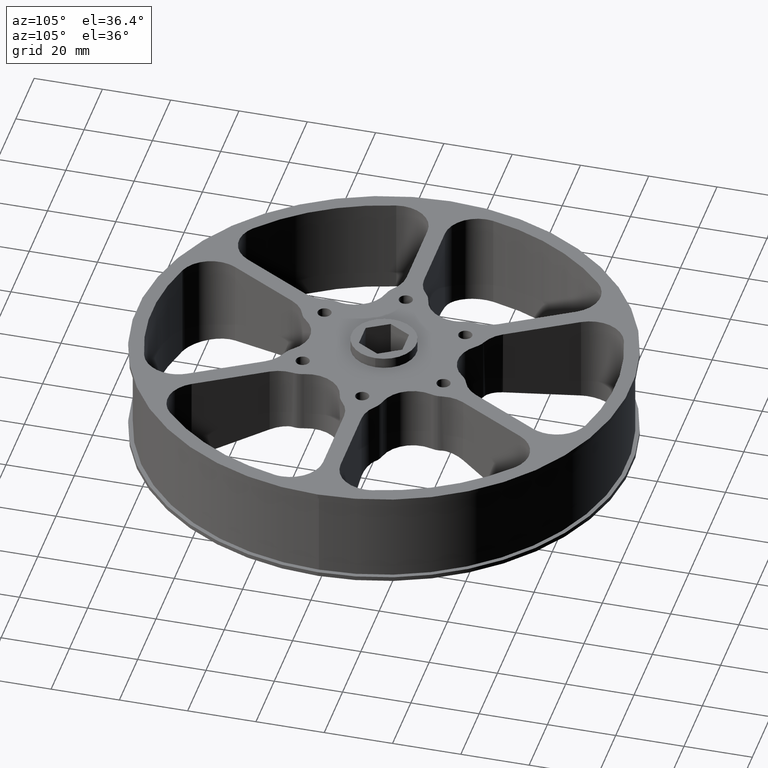
[diagram: clean part render]
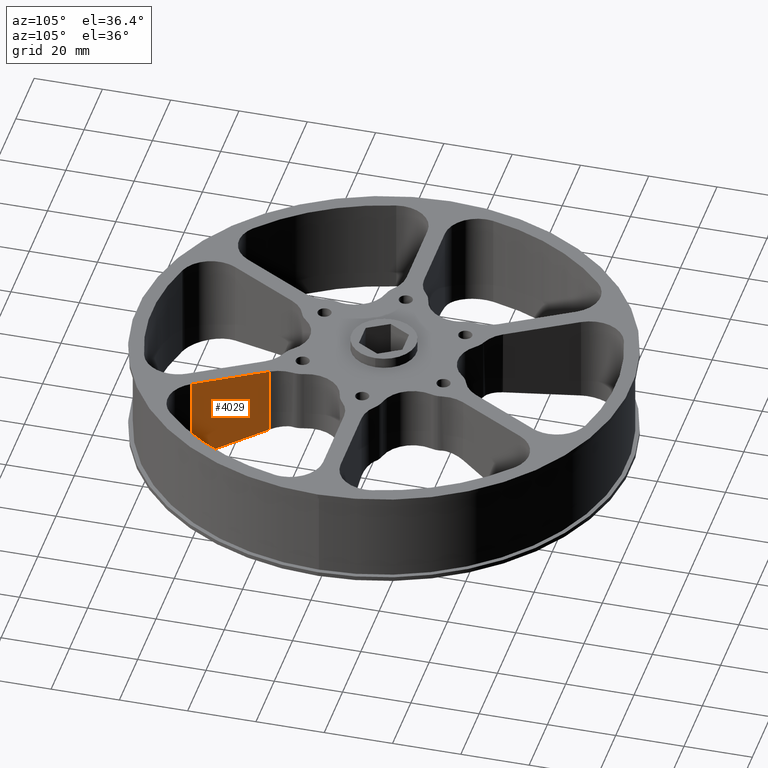
[diagram: same view with one face highlighted and labeled with its STEP entity id]
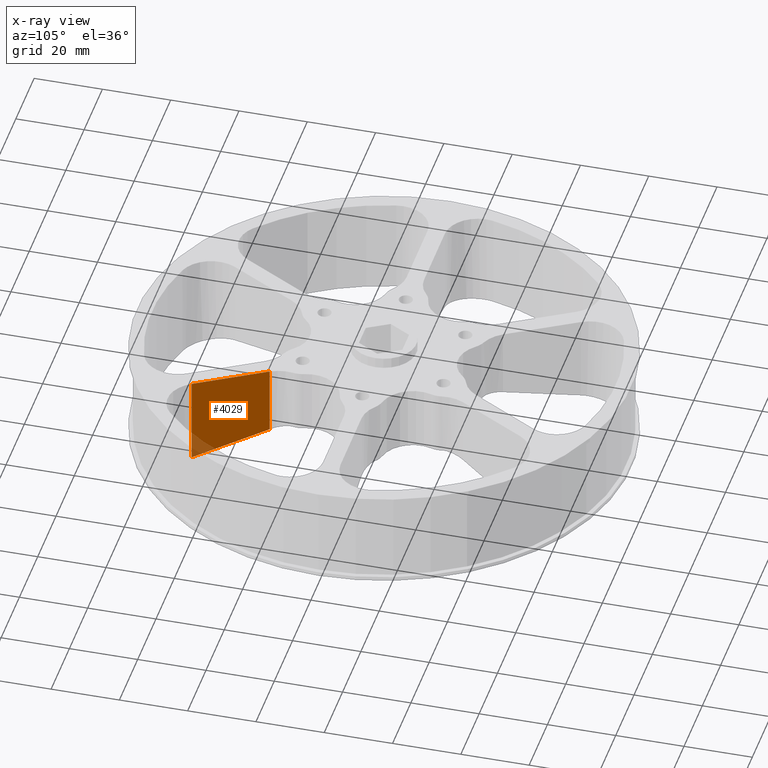
[diagram: x-ray of the same camera — body ghosted, the highlighted face saturated]
A machine part, auxiliary view. The second image highlights one B-rep face of the part: STEP entity #4029.
The next image is the same camera in x-ray: the body ghosted, the highlighted face saturated — about 6% of this face is hidden behind the body in this view.
In plain terms, the highlighted planar face has unit normal (-0.866, -0.5, 0).
Its self-contained STEP definition (entity closure, byte-faithful):
#261 = CARTESIAN_POINT ( 'NONE',  ( 0.7593745980094686043, -1.115275385729621149, 0.3246983252277151344 ) ) ;
#268 = FACE_OUTER_BOUND ( 'NONE', #3660, .T. ) ;
#523 = VECTOR ( 'NONE', #554, 39.37007874015748143 ) ;
#536 = VECTOR ( 'NONE', #1533, 39.37007874015748143 ) ;
#554 = DIRECTION ( 'NONE',  ( -0.0000000000000000000, -0.0000000000000000000, 1.000000000000000000 ) ) ;
#578 = DIRECTION ( 'NONE',  ( 0.4999999999999929501, -0.8660254037844425934, 0.0000000000000000000 ) ) ;
#829 = CARTESIAN_POINT ( 'NONE',  ( 1.208723857349099262, -1.893571133249319915, 1.125000000000000000 ) ) ;
#1021 = ORIENTED_EDGE ( 'NONE', *, *, #1607, .T. ) ;
#1049 = CARTESIAN_POINT ( 'NONE',  ( 0.7593745980094686043, -1.115275385729621149, 0.3246983252277151344 ) ) ;
#1409 = LINE ( 'NONE', #2873, #536 ) ;
#1426 = CARTESIAN_POINT ( 'NONE',  ( 1.208723857349099262, -1.893571133249320360, 0.1090217662803017046 ) ) ;
#1499 = LINE ( 'NONE', #3407, #523 ) ;
#1533 = DIRECTION ( 'NONE',  ( 0.0000000000000000000, 0.0000000000000000000, -1.000000000000000000 ) ) ;
#1607 = EDGE_CURVE ( 'NONE', #4143, #4245, #1409, .T. ) ;
#1691 = CARTESIAN_POINT ( 'NONE',  ( 1.208723857349099262, -1.893571133249320360, 0.1090217662803017046 ) ) ;
#1784 = B_SPLINE_CURVE_WITH_KNOTS ( 'NONE', 3,
 ( #1049, #3034, #4043, #1691 ),
 .UNSPECIFIED., .F., .F.,
 ( 4, 4 ),
 ( 2.374831638876753537E-07, 0.02347532646394985198 ),
 .UNSPECIFIED. ) ;
#2070 = ORIENTED_EDGE ( 'NONE', *, *, #2365, .T. ) ;
#2072 = AXIS2_PLACEMENT_3D ( 'NONE', #3270, #2957, #578 ) ;
#2117 = ORIENTED_EDGE ( 'NONE', *, *, #3549, .F. ) ;
#2365 = EDGE_CURVE ( 'NONE', #2605, #4143, #3454, .T. ) ;
#2464 = DIRECTION ( 'NONE',  ( 0.4999999999999929501, -0.8660254037844427044, 0.0000000000000000000 ) ) ;
#2605 = VERTEX_POINT ( 'NONE', #3456 ) ;
#2802 = CARTESIAN_POINT ( 'NONE',  ( 1.423167634191663922, -2.264998650107611144, 1.125000000000000000 ) ) ;
#2873 = CARTESIAN_POINT ( 'NONE',  ( 1.208723857349099262, -1.893571133249319915, 0.006009615384615678117 ) ) ;
#2957 = DIRECTION ( 'NONE',  ( -0.8660254037844427044, -0.4999999999999930056, 0.0000000000000000000 ) ) ;
#3034 = CARTESIAN_POINT ( 'NONE',  ( 0.9091666662923574282, -1.374722858566416184, 0.2528809715653633217 ) ) ;
#3270 = CARTESIAN_POINT ( 'NONE',  ( 1.423167634191663922, -2.264998650107611144, 0.0000000000000000000 ) ) ;
#3274 = EDGE_CURVE ( 'NONE', #3629, #2605, #1499, .T. ) ;
#3346 = VECTOR ( 'NONE', #2464, 39.37007874015748143 ) ;
#3407 = CARTESIAN_POINT ( 'NONE',  ( 0.7593745980094686043, -1.115275385729621149, 0.0000000000000000000 ) ) ;
#3446 = PLANE ( 'NONE',  #2072 ) ;
#3454 = LINE ( 'NONE', #2802, #3346 ) ;
#3456 = CARTESIAN_POINT ( 'NONE',  ( 0.7593745980094686043, -1.115275385729621149, 1.125000000000000000 ) ) ;
#3549 = EDGE_CURVE ( 'NONE', #3629, #4245, #1784, .T. ) ;
#3629 = VERTEX_POINT ( 'NONE', #261 ) ;
#3660 = EDGE_LOOP ( 'NONE', ( #2070, #1021, #2117, #3818 ) ) ;
#3818 = ORIENTED_EDGE ( 'NONE', *, *, #3274, .T. ) ;
#4029 = ADVANCED_FACE ( 'NONE', ( #268 ), #3446, .F. ) ;
#4043 = CARTESIAN_POINT ( 'NONE',  ( 1.058946164977342841, -1.634148560221011515, 0.1809588936208278431 ) ) ;
#4143 = VERTEX_POINT ( 'NONE', #829 ) ;
#4245 = VERTEX_POINT ( 'NONE', #1426 ) ;